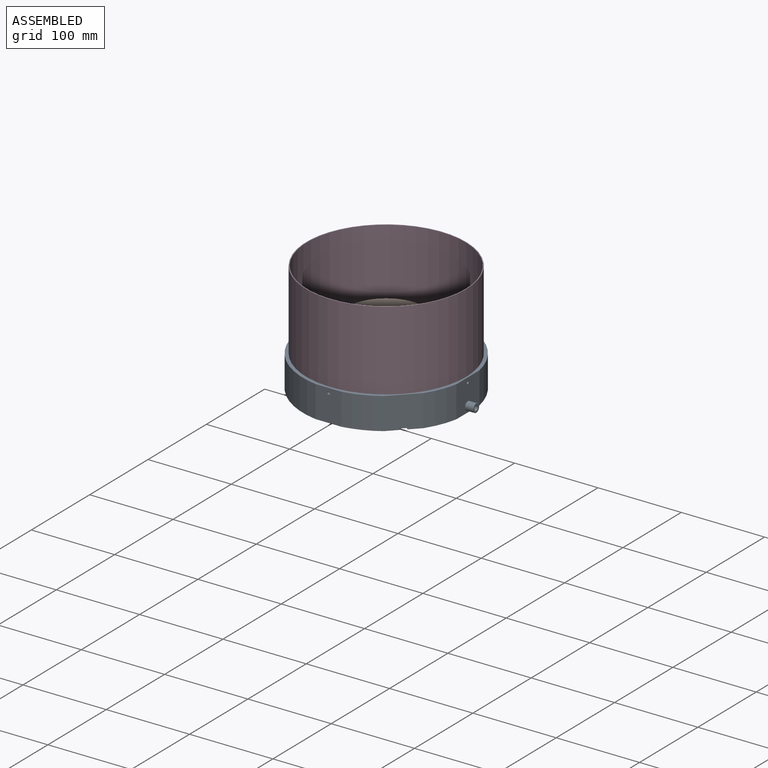
[diagram: assembled view]
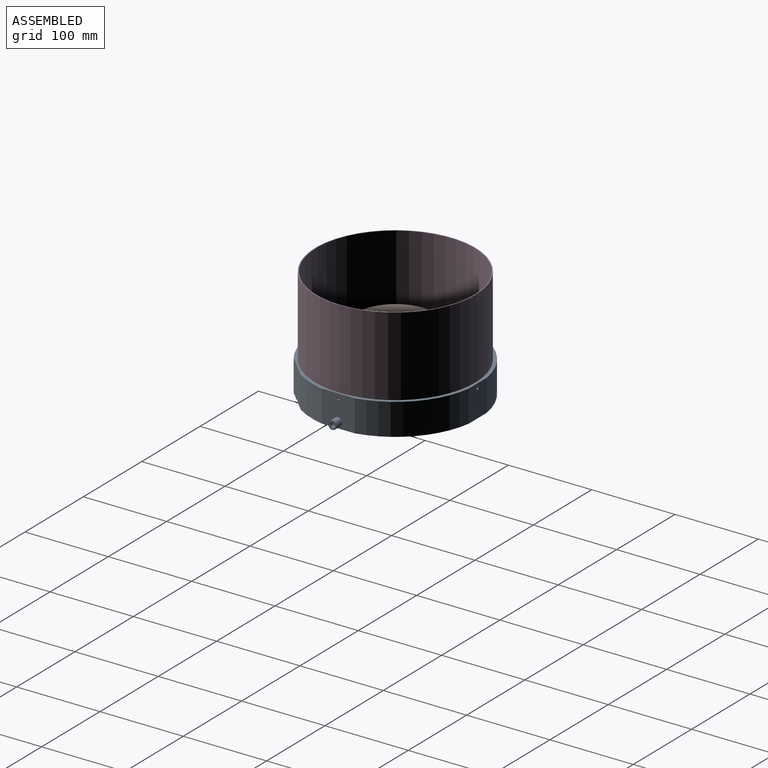
[diagram: assembled view, second angle]
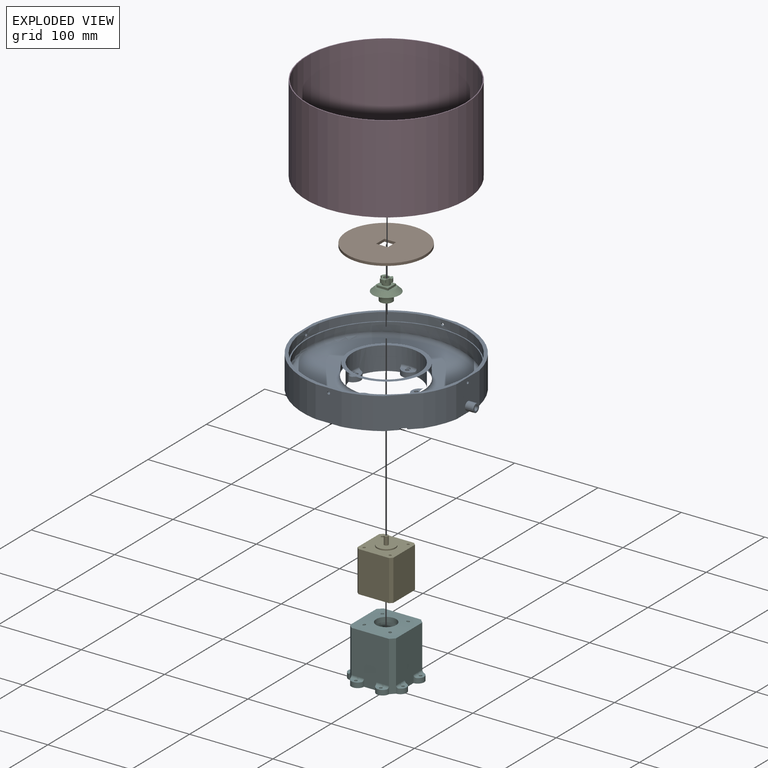
[diagram: exploded view]
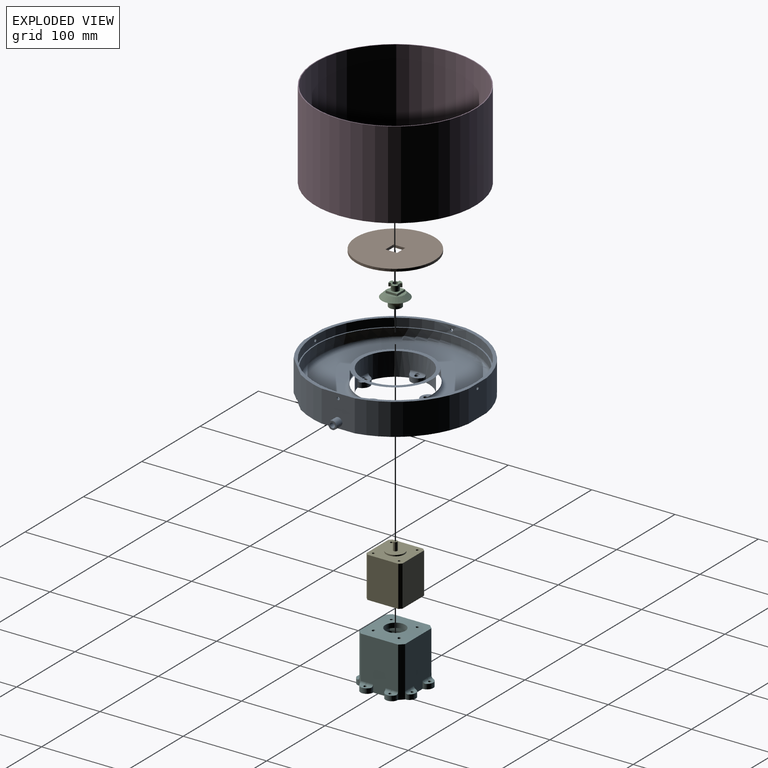
[diagram: exploded view, second angle]
ASSEMBLY  parts=6 mates=11
PART A: 60 faces, bbox 220x215.1x46.7 mm
  f0: plane 197.57x196.78mm, normal (0,0,-1), area 26204.9mm2, adj f1,f3,f5,f7,f9,f10,f12,f22
  f1: cylinder r=100mm len=39.68mm, axis (0,0,1), area 1630.2mm2, adj f0,f11,f27,f52
  f2: bspline ~5.12x3.25mm, area 10mm2, adj f9,f48,f49,f50
  f3: cylinder r=100mm len=82.46mm, axis (0,0,1), area 4614.7mm2, adj f0,f11,f12,f43
  f4: bspline ~5.12x3.25mm, area 10mm2, adj f9,f40,f41,f42
  f5: cylinder r=100mm len=83.24mm, axis (0,0,1), area 4782.9mm2, adj f0,f11,f35,f43
  f6: bspline ~5.12x3.25mm, area 10mm2, adj f9,f32,f33,f34
  f7: cylinder r=100mm len=83.24mm, axis (0,0,1), area 4782.9mm2, adj f0,f11,f27,f35
  f8: bspline ~5.12x3.25mm, area 10mm2, adj f9,f24,f25,f26
  f9: cylinder r=40mm len=80mm, axis (0,0,1), area 6348.6mm2, adj f0,f2,f4,f6,f8,f13,f22,f24
  f10: cylinder r=100mm len=38mm, axis (0,0,1), area 1462mm2, adj f0,f11,f12,f52
  f11: plane 197.57x196.78mm, normal (0,0,1), area 2281mm2, adj f1,f3,f5,f7,f10,f12,f15,f27
  f12: plane 39.8x38mm, normal (1,0,0), area 1424.2mm2, adj f0,f3,f10,f11,f51,f56
  f13: plane 98.07x97.96mm, normal (0,0,1), area 1233.8mm2, adj f9,f18
  f14: plane 192x192mm, normal (0,0,1), area 761.1mm2, adj f15,f16
  f15: cylinder r=96mm len=192mm, axis (0,0,1), area 5993mm2, adj f11,f14,f28,f36,f44,f51
  f16: cone r=95.57mm half-angle=2.8deg, axis (-0.05,0,-1), area 7978.7mm2, adj f14,f19,f58
  f17: cone r=95.57mm half-angle=87.2deg, axis (0.05,0,1), area 17631.2mm2, adj f19,f20,f58,f59
  f18: cone r=45.63mm half-angle=2.8deg, axis (-0.05,0,-1), area 3858.6mm2, adj f13,f20
  f19: torus R=90.33mm, axis (-0.05,0,-1), area 4597.5mm2, adj f16,f17,f58
  f20: torus R=50.38mm, axis (-0.05,0,-1), area 2336.9mm2, adj f17,f18
  f21: plane 16.99x8.88mm, normal (0,0,1), area 73.8mm2, adj f22,f23,f24,f25,f26
  f22: cylinder r=9.38mm len=18.64mm, axis (0,0,-1), area 172.7mm2, adj f0,f9,f21,f24,f25
  f23: cylinder r=2.25mm len=6mm, axis (0,0,-1), area 84.8mm2, adj f0,f21
  f24: torus R=37mm, axis (0,0,-1), area 31.7mm2, adj f8,f9,f21,f22,f26
  f25: torus R=37mm, axis (0,0,-1), area 31.7mm2, adj f8,f9,f21,f22,f26
  f26: cylinder r=3.5mm len=6.79mm, axis (0,0,-1), area 4.3mm2, adj f8,f21,f24,f25
  f27: plane 38x31.09mm, normal (0,-1,0), area 1171.7mm2, adj f0,f1,f7,f11,f28
  f28: cylinder r=1.75mm len=3.5mm, axis (0,-1,0), area 30.6mm2, adj f15,f27
  f29: plane 16.99x8.88mm, normal (0,0,1), area 73.8mm2, adj f30,f31,f32,f33,f34
  f30: cylinder r=9.38mm len=18.64mm, axis (0,0,-1), area 172.7mm2, adj f0,f9,f29,f32,f33
  f31: cylinder r=2.25mm len=6mm, axis (0,0,-1), area 84.8mm2, adj f0,f29
  f32: torus R=37mm, axis (0,0,-1), area 31.7mm2, adj f6,f9,f29,f30,f34
  f33: torus R=37mm, axis (0,0,-1), area 31.7mm2, adj f6,f9,f29,f30,f34
  f34: cylinder r=3.5mm len=6.79mm, axis (0,0,-1), area 4.3mm2, adj f6,f29,f32,f33
  f35: plane 38x31.09mm, normal (-1,0,0), area 1171.7mm2, adj f0,f5,f7,f11,f36
  f36: cylinder r=1.75mm len=3.5mm, axis (-1,0,0), area 30.8mm2, adj f15,f35
  f37: plane 16.99x8.88mm, normal (0,0,1), area 73.8mm2, adj f38,f39,f40,f41,f42
  f38: cylinder r=9.38mm len=18.64mm, axis (0,0,-1), area 172.7mm2, adj f0,f9,f37,f40,f41
  f39: cylinder r=2.25mm len=6mm, axis (0,0,-1), area 84.8mm2, adj f0,f37
  f40: torus R=37mm, axis (0,0,-1), area 31.7mm2, adj f4,f9,f37,f38,f42
  f41: torus R=37mm, axis (0,0,-1), area 31.7mm2, adj f4,f9,f37,f38,f42
  f42: cylinder r=3.5mm len=6.79mm, axis (0,0,-1), area 4.3mm2, adj f4,f37,f40,f41
  f43: plane 38x31.09mm, normal (0,1,0), area 1171.7mm2, adj f0,f3,f5,f11,f44
  f44: cylinder r=1.75mm len=3.5mm, axis (0,1,0), area 30.8mm2, adj f15,f43
  f45: plane 16.99x8.88mm, normal (0,0,1), area 73.8mm2, adj f46,f47,f48,f49,f50
  f46: cylinder r=9.38mm len=18.64mm, axis (0,0,-1), area 172.7mm2, adj f0,f9,f45,f48,f49
  f47: cylinder r=2.25mm len=6mm, axis (0,0,-1), area 84.8mm2, adj f0,f45
  f48: torus R=37mm, axis (0,0,-1), area 31.7mm2, adj f2,f9,f45,f46,f50
  f49: torus R=37mm, axis (0,0,-1), area 31.7mm2, adj f2,f9,f45,f46,f50
  f50: cylinder r=3.5mm len=6.79mm, axis (0,0,-1), area 4.3mm2, adj f2,f45,f48,f49
  f51: cylinder r=1.75mm len=3.5mm, axis (1,0,0), area 22mm2, adj f12,f15
  f52: plane 38x28.14mm, normal (0.71,-0.71,0), area 1500.4mm2, adj f0,f1,f10,f11,f53,f54,f55
  f53: plane 41.15x41.15mm, normal (-0.71,-0.71,0), area 87.3mm2, adj f0,f9,f52,f54
  f54: plane 46.81x46.81mm, normal (0,0,-1), area 464.5mm2, adj f9,f52,f53,f55
  f55: plane 41.15x41.15mm, normal (0.71,0.71,0), area 87.3mm2, adj f0,f9,f52,f54
  f56: cylinder r=5mm len=10mm, axis (-1,0,0), area 314.2mm2, adj f12,f57
  f57: plane 10x10mm, normal (1,0,0), area 50.3mm2, adj f56,f58
  f58: cylinder r=3mm len=45mm, axis (1,0,0), area 401.8mm2, adj f16,f17,f19,f57,f59
  f59: plane 4.1x0.82mm, normal (1,0,0), area 2.3mm2, adj f17,f58
PART B: 7 faces, bbox 94x94x3 mm
  f0: plane 94x94mm, normal (0,0,1), area 6743.8mm2, adj f2,f3,f4,f5,f6
  f1: plane 94x94mm, normal (0,0,-1), area 6743.8mm2, adj f2,f3,f4,f5,f6
  f2: cylinder r=47mm len=94mm, axis (0,0,-1), area 885.9mm2, adj f0,f1
  f3: plane 14x3mm, normal (-1,0,0), area 42mm2, adj f0,f1,f4,f6
  f4: plane 14x3mm, normal (0,-1,0), area 42mm2, adj f0,f1,f3,f5
  f5: plane 14x3mm, normal (1,0,0), area 42mm2, adj f0,f1,f4,f6
  f6: plane 14x3mm, normal (0,1,0), area 42mm2, adj f0,f1,f3,f5
PART C: 31 faces, bbox 37.9x37.9x29.7 mm
  f0: cylinder r=11mm len=22mm, axis (0,0,-1), area 1mm2, adj f8,f25
  f1: cylinder r=6.9mm len=6.07mm, axis (0,0,-1), area 31.1mm2, adj f2,f3,f19,f22,f28
  f2: plane 13.8x12.91mm, normal (0,0,1), area 78.1mm2, adj f1,f4,f6,f16,f17,f18,f19,f20
  f3: plane 5.51x3.87mm, normal (0,0,-1), area 12.2mm2, adj f1,f17,f22,f28
  f4: cylinder r=6.9mm len=7mm, axis (0,0,-1), area 31.1mm2, adj f2,f5,f20,f23,f29
  f5: plane 6.11x3.02mm, normal (0,0,-1), area 12.2mm2, adj f4,f17,f20,f29
  f6: cylinder r=6.9mm len=6.07mm, axis (0,0,-1), area 31.1mm2, adj f2,f7,f18,f21,f27
  f7: plane 5.07x4.62mm, normal (0,0,-1), area 12.2mm2, adj f6,f17,f18,f27
  f8: plane 22x22mm, normal (0,0,1), area 189.7mm2, adj f0,f9,f10,f11,f12
  f9: plane 13.8x2.5mm, normal (0,-1,0), area 34.5mm2, adj f8,f10,f12,f13
  f10: plane 13.8x2.5mm, normal (1,0,0), area 34.5mm2, adj f8,f9,f11,f13
  f11: plane 13.8x2.5mm, normal (0,1,0), area 34.5mm2, adj f8,f10,f12,f13
  f12: plane 13.8x2.5mm, normal (-1,0,0), area 34.5mm2, adj f8,f9,f11,f13
  f13: plane 13.8x13.8mm, normal (0,0,1), area 126.8mm2, adj f9,f10,f11,f12,f17
  f14: cylinder r=7.5mm len=15mm, axis (0,0,1), area 113.1mm2, adj f15,f24
  f15: plane 15x15mm, normal (0,0,-1), area 79.9mm2, adj f14,f30
  f16: cylinder r=3.05mm len=22.5mm, axis (0,0,-1), area 431.2mm2, adj f2,f30
  f17: cylinder r=4.5mm len=9mm, axis (0,0,-1), area 151.8mm2, adj f2,f3,f5,f7,f13,f18,f19,f20
  f18: plane 4.3x2.09mm, normal (0.87,0.49,0), area 10.3mm2, adj f2,f6,f7,f17
  f19: plane 3.3x2.09mm, normal (-0.87,0.49,0), area 7.9mm2, adj f1,f2,f17,f28
  f20: plane 4.3x2.07mm, normal (-0.86,0.51,0), area 10.3mm2, adj f2,f4,f5,f17
  f21: plane 3.3x2.4mm, normal (0.01,-1,0), area 7.9mm2, adj f2,f6,f17,f27
  f22: plane 4.3x2.4mm, normal (-0.01,-1,0), area 10.3mm2, adj f1,f2,f3,f17
  f23: plane 3.3x2.07mm, normal (0.86,0.51,0), area 7.9mm2, adj f2,f4,f17,f29
  f24: torus R=17.5mm, axis (0,0,1), area 471.7mm2, adj f14,f26
  f25: cone r=16.15mm half-angle=45.9deg, axis (0,0,-1), area 611mm2, adj f0,f26
  f26: plane 32.29x32.29mm, normal (0,0,-1), area 438.9mm2, adj f24,f25
  f27: plane 2.51x1.03mm, normal (0.01,-0.71,-0.71), area 3.4mm2, adj f6,f7,f17,f21
  f28: plane 2.69x2.02mm, normal (-0.62,0.35,-0.71), area 3.4mm2, adj f1,f3,f17,f19
  f29: plane 2.52x2.14mm, normal (0.61,0.36,-0.71), area 3.4mm2, adj f4,f5,f17,f23
  f30: torus R=5.55mm, axis (0,0,-1), area 97.7mm2, adj f15,f16
PART D: 4 faces, bbox 192x192x105 mm
  f0: cylinder r=96mm len=192mm, axis (0,0,-1), area 63334.5mm2, adj f1,f2
  f1: plane 192x192mm, normal (0,0,1), area 600mm2, adj f0,f3
  f2: plane 192x192mm, normal (0,0,-1), area 600mm2, adj f0,f3
  f3: cylinder r=95mm len=190mm, axis (0,0,1), area 62674.8mm2, adj f1,f2
PART E: 22 faces, bbox 43x43x60.5 mm
  f0: plane 49x37mm, normal (0,1,0), area 1813mm2, adj f4,f5,f10,f11
  f1: plane 49x37mm, normal (-1,0,0), area 1813mm2, adj f4,f5,f10,f13
  f2: plane 49x37mm, normal (0,-1,0), area 1813mm2, adj f4,f5,f12,f13
  f3: plane 49x37mm, normal (1,0,0), area 1813mm2, adj f4,f5,f11,f12
  f4: plane 43x43mm, normal (0,0,1), area 1422.6mm2, adj f0,f1,f2,f3,f6,f10,f11,f12
  f5: plane 43x43mm, normal (0,0,-1), area 1831mm2, adj f0,f1,f2,f3,f10,f11,f12,f13
  f6: cylinder r=11mm len=22mm, axis (0,0,-1), area 103.7mm2, adj f4,f7
  f7: plane 22x22mm, normal (0,0,1), area 360.5mm2, adj f6,f8
  f8: cylinder r=2.5mm len=10mm, axis (0,0,-1), area 157.1mm2, adj f7,f9
  f9: plane 5x5mm, normal (0,0,1), area 19.6mm2, adj f8
  f10: plane 49x3mm, normal (-0.71,0.71,0), area 207.9mm2, adj f0,f1,f4,f5
  f11: plane 49x3mm, normal (0.71,0.71,0), area 207.9mm2, adj f0,f3,f4,f5
  f12: plane 49x3mm, normal (0.71,-0.71,0), area 207.9mm2, adj f2,f3,f4,f5
  f13: plane 49x3mm, normal (-0.71,-0.71,0), area 207.9mm2, adj f1,f2,f4,f5
  f14: cylinder r=1.5mm len=6mm, axis (0,0,1), area 56.5mm2, adj f4,f15
  f15: plane 3x3mm, normal (0,0,1), area 7.1mm2, adj f14
  f16: cylinder r=1.5mm len=6mm, axis (0,0,1), area 56.5mm2, adj f4,f17
  f17: plane 3x3mm, normal (0,0,1), area 7.1mm2, adj f16
  f18: cylinder r=1.5mm len=6mm, axis (0,0,1), area 56.5mm2, adj f4,f19
  f19: plane 3x3mm, normal (0,0,1), area 7.1mm2, adj f18
  f20: cylinder r=1.5mm len=6mm, axis (0,0,1), area 56.5mm2, adj f4,f21
  f21: plane 3x3mm, normal (0,0,1), area 7.1mm2, adj f20
PART F: 81 faces, bbox 70x70x61.7 mm
  f0: cone r=27.5mm half-angle=83.8deg, axis (0,0,-1), area 1896.5mm2, adj f1,f2,f3,f9,f76,f77,f78,f79
  f1: plane 27.5x27.5mm, normal (0,0,1), area 149.8mm2, adj f0,f4,f5,f24
  f2: plane 27.5x27.5mm, normal (0,0,1), area 149.8mm2, adj f0,f5,f8,f25
  f3: plane 27.5x27.5mm, normal (0,0,1), area 149.8mm2, adj f0,f7,f8,f27
  f4: plane 60x45mm, normal (1,0,0), area 2431.1mm2, adj f1,f6,f9,f24,f26,f40,f42,f52
  f5: plane 60x45mm, normal (0,1,0), area 2431.1mm2, adj f1,f2,f6,f24,f25,f32,f34,f64
  f6: plane 70x70mm, normal (0,0,-1), area 1318.9mm2, adj f4,f5,f7,f8,f10,f11,f12,f13
  f7: plane 60x45mm, normal (0,-1,0), area 2431.1mm2, adj f3,f6,f9,f26,f27,f28,f30,f70
  f8: plane 60x45mm, normal (-1,0,0), area 2431.1mm2, adj f2,f3,f6,f25,f27,f36,f38,f58
  f9: plane 27.5x27.5mm, normal (0,0,1), area 149.8mm2, adj f0,f4,f7,f26
  f10: plane 44x42mm, normal (0,-1,0), area 1848mm2, adj f6,f14,f20,f21
  f11: plane 44x42mm, normal (-1,0,0), area 1848mm2, adj f6,f14,f20,f22
  f12: plane 44x42mm, normal (0,1,0), area 1848mm2, adj f6,f14,f22,f23
  f13: plane 44x42mm, normal (1,0,0), area 1848mm2, adj f6,f14,f21,f23
  f14: plane 48x48mm, normal (0,0,-1), area 350mm2, adj f10,f11,f12,f13,f16,f17,f18,f19
  f15: plane 44x44mm, normal (0,0,-1), area 1445.1mm2, adj f16,f17,f18,f19,f76,f77,f78,f79
  f16: plane 44x12mm, normal (0,-1,0), area 528mm2, adj f14,f15,f17,f19
  f17: plane 44x12mm, normal (1,0,0), area 528mm2, adj f14,f15,f16,f18
  f18: plane 44x12mm, normal (0,1,0), area 528mm2, adj f14,f15,f17,f19
  f19: plane 44x12mm, normal (-1,0,0), area 528mm2, adj f14,f15,f16,f18
  f20: plane 44x3mm, normal (-0.71,-0.71,0), area 186.7mm2, adj f6,f10,f11,f14
  f21: plane 44x3mm, normal (0.71,-0.71,0), area 186.7mm2, adj f6,f10,f13,f14
  f22: plane 44x3mm, normal (-0.71,0.71,0), area 186.7mm2, adj f6,f11,f12,f14
  f23: plane 44x3mm, normal (0.71,0.71,0), area 186.7mm2, adj f6,f12,f13,f14
  f24: plane 60x5mm, normal (0.71,0.71,0), area 424.3mm2, adj f1,f4,f5,f6,f34,f42
  f25: plane 60x5mm, normal (-0.71,0.71,0), area 424.3mm2, adj f2,f5,f6,f8,f32,f38
  f26: plane 60x5mm, normal (0.71,-0.71,0), area 424.3mm2, adj f4,f6,f7,f9,f30,f40
  f27: plane 60x5mm, normal (-0.71,-0.71,0), area 424.3mm2, adj f3,f6,f7,f8,f28,f36
  f28: cylinder r=7.5mm len=15mm, axis (0,0,-1), area 150.6mm2, adj f6,f7,f27,f29,f73,f75
  f29: plane 13.75x4.5mm, normal (0,0,1), area 39.1mm2, adj f28,f51,f73,f75
  f30: cylinder r=7.5mm len=15mm, axis (0,0,-1), area 150.6mm2, adj f6,f7,f26,f31,f70,f72
  f31: plane 13.75x4.5mm, normal (0,0,1), area 39.1mm2, adj f30,f50,f70,f72
  f32: cylinder r=7.5mm len=15mm, axis (0,0,-1), area 150.6mm2, adj f5,f6,f25,f33,f67,f69
  f33: plane 13.75x4.5mm, normal (0,0,1), area 39.1mm2, adj f32,f49,f67,f69
  f34: cylinder r=7.5mm len=15mm, axis (0,0,-1), area 150.6mm2, adj f5,f6,f24,f35,f64,f66
  f35: plane 13.75x4.5mm, normal (0,0,1), area 39.1mm2, adj f34,f48,f64,f66
  f36: cylinder r=7.5mm len=15mm, axis (0,0,-1), area 150.6mm2, adj f6,f8,f27,f37,f61,f63
  f37: plane 13.75x4.5mm, normal (0,0,1), area 39.1mm2, adj f36,f47,f61,f63
  f38: cylinder r=7.5mm len=15mm, axis (0,0,-1), area 150.6mm2, adj f6,f8,f25,f39,f58,f60
  f39: plane 13.75x4.5mm, normal (0,0,1), area 39.1mm2, adj f38,f46,f58,f60
  f40: cylinder r=7.5mm len=15mm, axis (0,0,-1), area 150.6mm2, adj f4,f6,f26,f41,f55,f57
  f41: plane 13.75x4.5mm, normal (0,0,1), area 39.1mm2, adj f40,f45,f55,f57
  f42: cylinder r=7.5mm len=15mm, axis (0,0,-1), area 150.6mm2, adj f4,f6,f24,f43,f52,f54
  f43: plane 13.75x4.5mm, normal (0,0,1), area 39.1mm2, adj f42,f44,f52,f54
  f44: cylinder r=1.75mm len=6mm, axis (0,0,-1), area 66mm2, adj f6,f43,f53
  f45: cylinder r=1.75mm len=6mm, axis (0,0,-1), area 66mm2, adj f6,f41,f56
  f46: cylinder r=1.75mm len=6mm, axis (0,0,-1), area 66mm2, adj f6,f39,f59
  f47: cylinder r=1.75mm len=6mm, axis (0,0,-1), area 66mm2, adj f6,f37,f62
  f48: cylinder r=1.75mm len=6mm, axis (0,0,-1), area 66mm2, adj f6,f35,f65
  f49: cylinder r=1.75mm len=6mm, axis (0,0,-1), area 66mm2, adj f6,f33,f68
  f50: cylinder r=1.75mm len=6mm, axis (0,0,-1), area 66mm2, adj f6,f31,f71
  f51: cylinder r=1.75mm len=6mm, axis (0,0,-1), area 66mm2, adj f6,f29,f74
  f52: cylinder r=3mm len=5.76mm, axis (0,-1,0), area 25.7mm2, adj f4,f42,f43,f53
  f53: bspline ~3.94x3.03mm, area 12.6mm2, adj f4,f44,f52,f54
  f54: cylinder r=3mm len=5.76mm, axis (0,-1,0), area 25.7mm2, adj f4,f42,f43,f53
  f55: cylinder r=3mm len=5.76mm, axis (0,-1,0), area 25.7mm2, adj f4,f40,f41,f56
  f56: bspline ~3.94x3.03mm, area 12.6mm2, adj f4,f45,f55,f57
  f57: cylinder r=3mm len=5.76mm, axis (0,-1,0), area 25.7mm2, adj f4,f40,f41,f56
  f58: cylinder r=3mm len=5.76mm, axis (0,1,0), area 25.7mm2, adj f8,f38,f39,f59
  f59: bspline ~3.48x3.01mm, area 12.6mm2, adj f8,f46,f58,f60
  f60: cylinder r=3mm len=5.76mm, axis (0,1,0), area 25.7mm2, adj f8,f38,f39,f59
  f61: cylinder r=3mm len=5.76mm, axis (0,1,0), area 25.7mm2, adj f8,f36,f37,f62
  f62: bspline ~3.48x3.01mm, area 12.6mm2, adj f8,f47,f61,f63
  f63: cylinder r=3mm len=5.76mm, axis (0,1,0), area 25.7mm2, adj f8,f36,f37,f62
  f64: cylinder r=3mm len=5.76mm, axis (1,0,0), area 25.7mm2, adj f5,f34,f35,f65
  f65: bspline ~3.48x3.01mm, area 12.6mm2, adj f5,f48,f64,f66
  f66: cylinder r=3mm len=5.76mm, axis (1,0,0), area 25.7mm2, adj f5,f34,f35,f65
  f67: cylinder r=3mm len=5.76mm, axis (1,0,0), area 25.7mm2, adj f5,f32,f33,f68
  f68: bspline ~3.48x3.01mm, area 12.6mm2, adj f5,f49,f67,f69
  f69: cylinder r=3mm len=5.76mm, axis (1,0,0), area 25.7mm2, adj f5,f32,f33,f68
  f70: cylinder r=3mm len=5.76mm, axis (-1,0,0), area 25.7mm2, adj f7,f30,f31,f71
  f71: bspline ~3.48x3.01mm, area 12.6mm2, adj f7,f50,f70,f72
  f72: cylinder r=3mm len=5.76mm, axis (-1,0,0), area 25.7mm2, adj f7,f30,f31,f71
  f73: cylinder r=3mm len=5.76mm, axis (-1,0,0), area 25.7mm2, adj f7,f28,f29,f74
  f74: bspline ~3.48x3.01mm, area 12.6mm2, adj f7,f51,f73,f75
  f75: cylinder r=3mm len=5.76mm, axis (-1,0,0), area 25.7mm2, adj f7,f28,f29,f74
  f76: cylinder r=1.75mm len=4.47mm, axis (0,0,-1), area 48.9mm2, adj f0,f15
  f77: cylinder r=1.75mm len=4.74mm, axis (0,0,-1), area 51.3mm2, adj f0,f15
  f78: cylinder r=1.75mm len=4.8mm, axis (0,0,-1), area 52.4mm2, adj f0,f15
  f79: cylinder r=1.75mm len=4.6mm, axis (0,0,-1), area 49.9mm2, adj f0,f15
  f80: cylinder r=12mm len=24mm, axis (0,0,-1), area 429.1mm2, adj f0,f15
PLACE A t=(-109.5,7.92,-33.38)mm
PLACE B t=(-109.6,7.82,20.12)mm
PLACE C t=(-109.5,7.92,15.12)mm
PLACE D t=(-109.5,7.92,-24.38)mm
PLACE E t=(-109.5,7.92,-45.38)mm
PLACE F t=(-109.5,7.92,-52.38)mm
MATE planar C.f14 <-> E.f6  axis (0,0,-1) through (-109.5,7.92,5.12)mm
MATE planar B.f4 <-> C.f11  axis (0,-1,0) through (-109.6,14.82,21.62)mm
MATE planar E.f8 <-> F.f0  axis (0,0,1) through (-109.5,7.92,3.62)mm
MATE planar F.f80 <-> A.f0  axis (0,0,-1) through (-109.5,7.92,-52.38)mm
MATE planar D.f0 <-> A.f13  axis (0,0,-1) through (-109.5,7.92,-24.38)mm
MATE planar B.f3 <-> C.f10  axis (-1,0,0) through (-102.6,7.82,21.62)mm
MATE cylindrical C.f16 <-> E.f8  axis (0,0,-1) through (-109.5,7.92,18.87)mm
MATE planar B.f2 <-> C.f1  axis (0,0,-1) through (-109.6,7.82,20.12)mm
MATE cylindrical D.f0 <-> A.f15  axis (0,0,-1) through (-109.5,7.92,-24.38)mm
MATE cylindrical F.f0 <-> A.f1  axis (0,0,-1) through (-109.5,7.92,9.31)mm
MATE cylindrical E.f6 <-> F.f80  axis (0,0,-1) through (-109.5,7.92,4.37)mm
